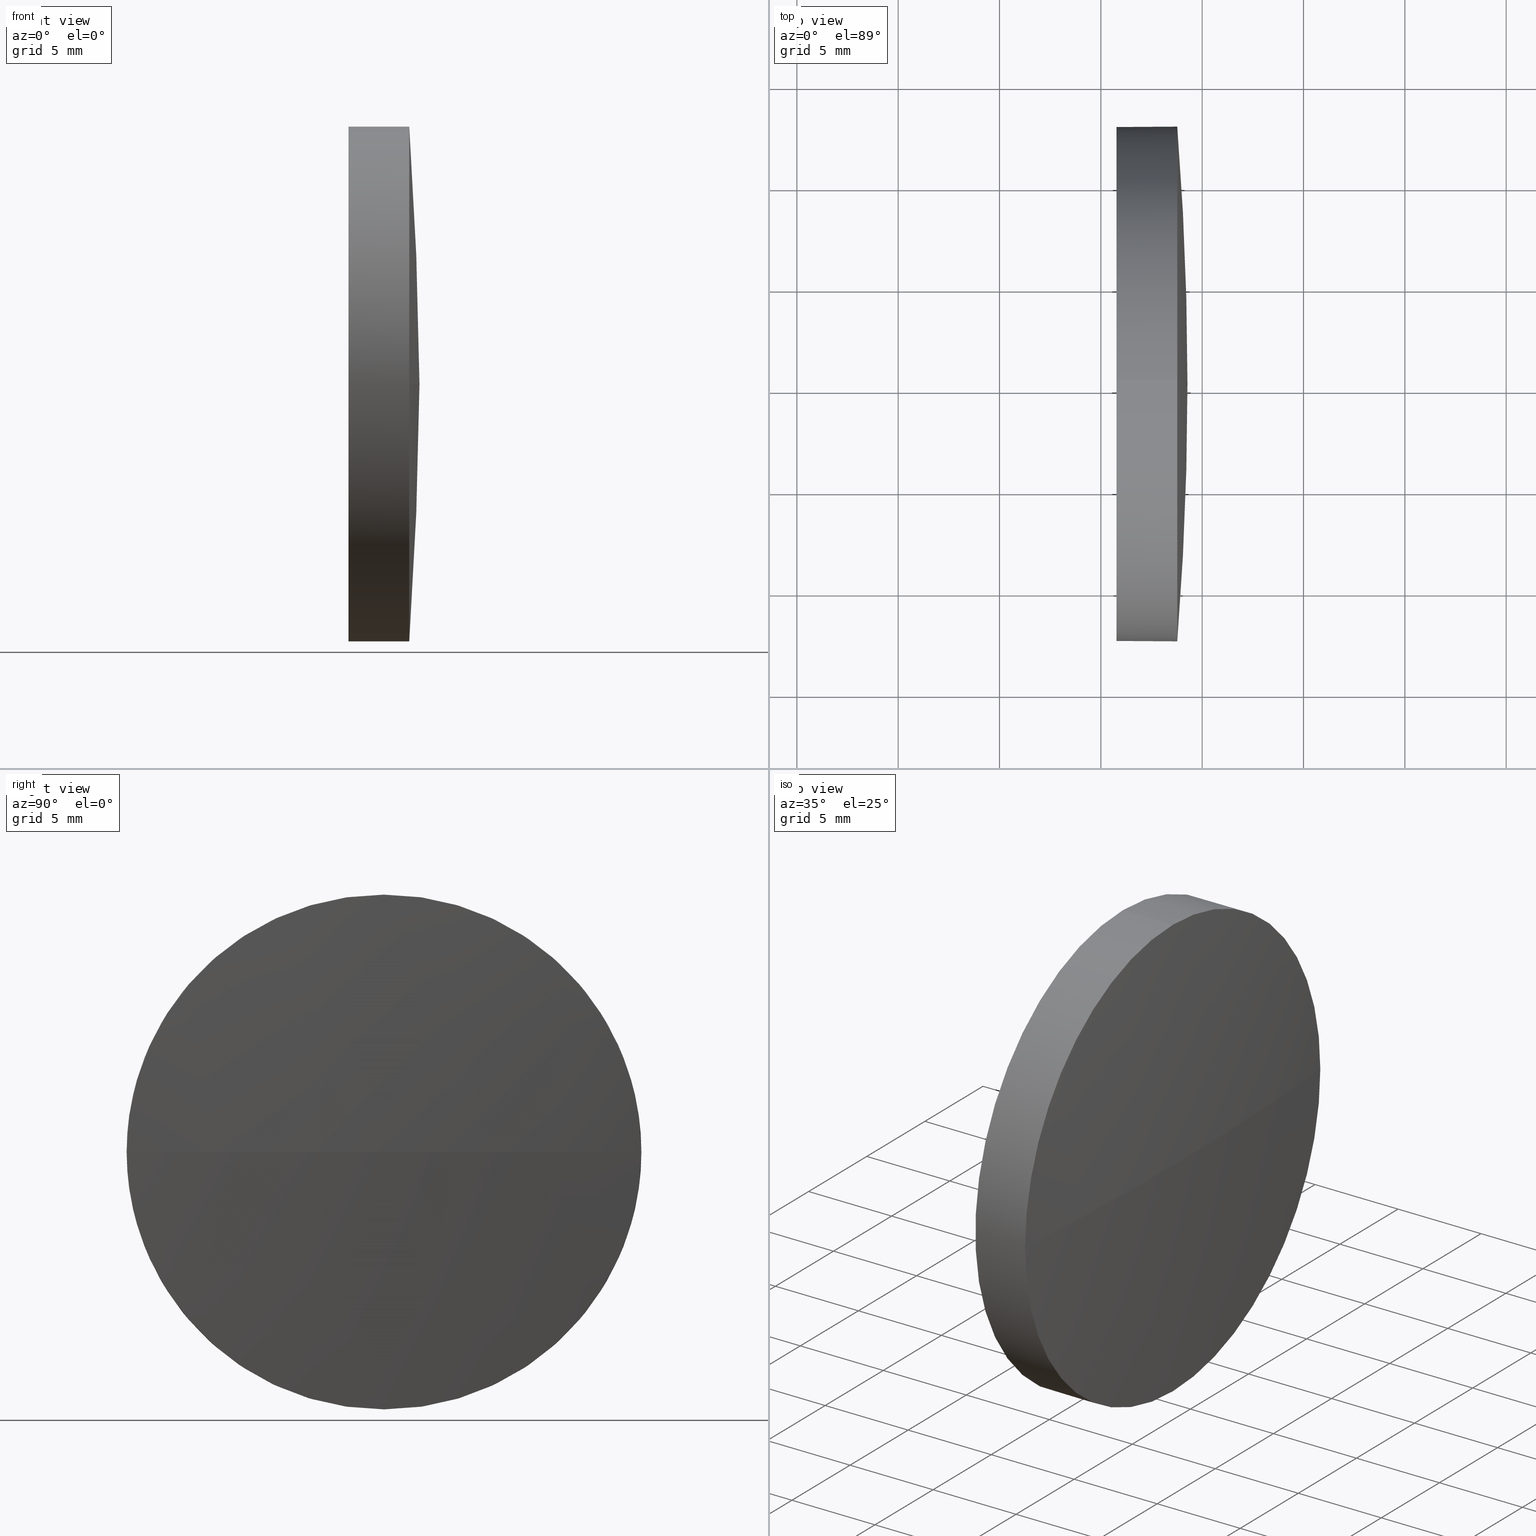
[diagram: canonical four-view strip — front | top / right | iso, engineering-drawing reading convention]
A machine part, canonical four-view strip (front | top / right | iso — engineering-drawing reading convention). The complete STEP part file that produces these views, byte-faithful:
ISO-10303-21;
HEADER;
FILE_DESCRIPTION (( 'STEP AP214' ),
    '1' );
FILE_NAME ('400020.STEP',
    '2019-08-21T06:01:08',
    ( '' ),
    ( '' ),
    'SwSTEP 2.0',
    'SolidWorks 2016',
    '' );
FILE_SCHEMA (( 'AUTOMOTIVE_DESIGN' ));
ENDSEC;

DATA;
#1 = ORIENTED_EDGE ( 'NONE', *, *, #91, .F. ) ;
#2 = EDGE_CURVE ( 'NONE', #8, #50, #66, .T. ) ;
#3 = DIRECTION ( 'NONE',  ( 0.0000000000000000000, 0.0000000000000000000, 1.000000000000000000 ) ) ;
#4 = ORIENTED_EDGE ( 'NONE', *, *, #44, .T. ) ;
#5 = DIRECTION ( 'NONE',  ( -1.000000000000000000, -0.0000000000000000000, -0.0000000000000000000 ) ) ;
#6 = CIRCLE ( 'NONE', #171, 160.4449999999999900 ) ;
#7 = CARTESIAN_POINT ( 'NONE',  ( 119.2736064308381100, 65.23355492641221100, 0.0000000000000000000 ) ) ;
#8 = VERTEX_POINT ( 'NONE', #145 ) ;
#9 = DIRECTION ( 'NONE',  ( 0.0000000000000000000, 1.224646799147353200E-016, -1.000000000000000000 ) ) ;
#10 = DIRECTION ( 'NONE',  ( 1.000000000000000000, 0.0000000000000000000, 0.0000000000000000000 ) ) ;
#11 = CIRCLE ( 'NONE', #14, 12.70000000000000300 ) ;
#12 = DIRECTION ( 'NONE',  ( -1.000000000000000000, -0.0000000000000000000, -0.0000000000000000000 ) ) ;
#13 = COLOUR_RGB ( '',1.000000000000000000, 1.000000000000000000, 1.000000000000000000 ) ;
#14 = AXIS2_PLACEMENT_3D ( 'NONE', #97, #12, #112 ) ;
#15 = ADVANCED_FACE ( 'NONE', ( #28 ), #177, .F. ) ;
#16 = ORIENTED_EDGE ( 'NONE', *, *, #2, .F. ) ;
#17 = ADVANCED_BREP_SHAPE_REPRESENTATION ( '400020', ( #185, #111 ), #93 ) ;
#18 = PRODUCT_DEFINITION_SHAPE ( 'NONE', 'NONE',  #164 ) ;
#19 = PRODUCT_DEFINITION_CONTEXT ( 'detailed design', #129, 'design' ) ;
#20 = COLOUR_RGB ( '',1.000000000000000000, 1.000000000000000000, 1.000000000000000000 ) ;
#21 = EDGE_CURVE ( 'NONE', #72, #50, #99, .T. ) ;
#22 = FACE_OUTER_BOUND ( 'NONE', #138, .T. ) ;
#23 = CARTESIAN_POINT ( 'NONE',  ( 110.1653732284884500, 65.23355492641219700, 0.0000000000000000000 ) ) ;
#24 = CARTESIAN_POINT ( 'NONE',  ( -41.17139356916187900, 65.23355492641219700, 0.0000000000000000000 ) ) ;
#25 = VECTOR ( 'NONE', #36, 1000.000000000000000 ) ;
#26 = PRODUCT ( '400020', '400020', '', ( #47 ) ) ;
#27 = DIRECTION ( 'NONE',  ( 0.0000000000000000000, 0.0000000000000000000, 1.000000000000000000 ) ) ;
#28 = FACE_OUTER_BOUND ( 'NONE', #160, .T. ) ;
#29 = DIRECTION ( 'NONE',  ( -0.0000000000000000000, 0.0000000000000000000, 1.000000000000000000 ) ) ;
#30 =( NAMED_UNIT ( * ) SI_UNIT ( $, .STERADIAN. ) SOLID_ANGLE_UNIT ( ) );
#31 = ORIENTED_EDGE ( 'NONE', *, *, #40, .F. ) ;
#32 = ADVANCED_FACE ( 'NONE', ( #64 ), #168, .T. ) ;
#33 = VERTEX_POINT ( 'NONE', #54 ) ;
#34 = CIRCLE ( 'NONE', #96, 160.4449999999999900 ) ;
#35 = DIRECTION ( 'NONE',  ( -1.000000000000000000, -0.0000000000000000000, -0.0000000000000000000 ) ) ;
#36 = DIRECTION ( 'NONE',  ( -1.000000000000000000, -0.0000000000000000000, -0.0000000000000000000 ) ) ;
#37 = ORIENTED_EDGE ( 'NONE', *, *, #115, .T. ) ;
#38 = EDGE_LOOP ( 'NONE', ( #114, #94, #46, #81 ) ) ;
#39 = CARTESIAN_POINT ( 'NONE',  ( 118.7701833425342200, 77.93355492641215700, 0.0000000000000000000 ) ) ;
#40 = EDGE_CURVE ( 'NONE', #176, #72, #116, .T. ) ;
#41 = SPHERICAL_SURFACE ( 'NONE', #65, 160.4449999999999900 ) ;
#42 = CARTESIAN_POINT ( 'NONE',  ( 118.7701833425342200, 65.23355492641219700, 0.0000000000000000000 ) ) ;
#43 =( NAMED_UNIT ( * ) SI_UNIT ( $, .STERADIAN. ) SOLID_ANGLE_UNIT ( ) );
#44 = EDGE_CURVE ( 'NONE', #178, #8, #95, .T. ) ;
#45 = ADVANCED_FACE ( 'NONE', ( #22 ), #117, .T. ) ;
#46 = ORIENTED_EDGE ( 'NONE', *, *, #58, .F. ) ;
#47 = PRODUCT_CONTEXT ( 'NONE', #154, 'mechanical' ) ;
#48 = AXIS2_PLACEMENT_3D ( 'NONE', #42, #150, #27 ) ;
#49 = CIRCLE ( 'NONE', #179, 12.70000000000000300 ) ;
#50 = VERTEX_POINT ( 'NONE', #69 ) ;
#51 = ORIENTED_EDGE ( 'NONE', *, *, #106, .T. ) ;
#52 = CARTESIAN_POINT ( 'NONE',  ( 115.7736064308381300, 65.23355492641219700, 0.0000000000000000000 ) ) ;
#53 = CARTESIAN_POINT ( 'NONE',  ( 115.7736064308381300, 65.23355492641219700, 0.0000000000000000000 ) ) ;
#54 = CARTESIAN_POINT ( 'NONE',  ( 118.7701833425342200, 52.53355492641223600, -1.555301434917133900E-015 ) ) ;
#55 = UNCERTAINTY_MEASURE_WITH_UNIT (LENGTH_MEASURE( 1.000000000000000100E-005 ), #135, 'distance_accuracy_value', 'NONE');
#56 = DIRECTION ( 'NONE',  ( 0.0000000000000000000, 0.0000000000000000000, 1.000000000000000000 ) ) ;
#57 = CARTESIAN_POINT ( 'NONE',  ( 118.7701833425342200, 65.23355492641219700, 0.0000000000000000000 ) ) ;
#58 = EDGE_CURVE ( 'NONE', #176, #178, #163, .T. ) ;
#59 = APPLICATION_PROTOCOL_DEFINITION ( 'draft international standard', 'automotive_design', 1998, #154 ) ;
#60 = FILL_AREA_STYLE_COLOUR ( '', #13 ) ;
#61 = SURFACE_SIDE_STYLE ('',( #76 ) ) ;
#62 = SURFACE_SIDE_STYLE ('',( #102 ) ) ;
#63 = VERTEX_POINT ( 'NONE', #7 ) ;
#64 = FACE_OUTER_BOUND ( 'NONE', #186, .T. ) ;
#65 = AXIS2_PLACEMENT_3D ( 'NONE', #85, #90, #127 ) ;
#66 = LINE ( 'NONE', #132, #172 ) ;
#67 = DIRECTION ( 'NONE',  ( 0.0000000000000000000, 0.0000000000000000000, -1.000000000000000000 ) ) ;
#68 = PRESENTATION_STYLE_ASSIGNMENT (( #152 ) ) ;
#69 = CARTESIAN_POINT ( 'NONE',  ( 115.7736064308381300, 65.23355492641219700, -12.70000000000000300 ) ) ;
#70 = AXIS2_PLACEMENT_3D ( 'NONE', #23, #133, #118 ) ;
#71 = ORIENTED_EDGE ( 'NONE', *, *, #58, .T. ) ;
#72 = VERTEX_POINT ( 'NONE', #134 ) ;
#73 =( NAMED_UNIT ( * ) SI_UNIT ( $, .STERADIAN. ) SOLID_ANGLE_UNIT ( ) );
#74 =( LENGTH_UNIT ( ) NAMED_UNIT ( * ) SI_UNIT ( .MILLI., .METRE. ) );
#75 = DIRECTION ( 'NONE',  ( -1.000000000000000000, -0.0000000000000000000, -0.0000000000000000000 ) ) ;
#76 = SURFACE_STYLE_FILL_AREA ( #109 ) ;
#77 = ORIENTED_EDGE ( 'NONE', *, *, #115, .F. ) ;
#78 = MECHANICAL_DESIGN_GEOMETRIC_PRESENTATION_REPRESENTATION (  '', ( #113 ), #84 ) ;
#79 = ORIENTED_EDGE ( 'NONE', *, *, #44, .F. ) ;
#80 = UNCERTAINTY_MEASURE_WITH_UNIT (LENGTH_MEASURE( 1.000000000000000100E-005 ), #86, 'distance_accuracy_value', 'NONE');
#81 = ORIENTED_EDGE ( 'NONE', *, *, #106, .F. ) ;
#82 = DIRECTION ( 'NONE',  ( 0.0000000000000000000, 1.000000000000000000, 0.0000000000000000000 ) ) ;
#83 = DIRECTION ( 'NONE',  ( 0.0000000000000000000, 0.0000000000000000000, 1.000000000000000000 ) ) ;
#84 =( GEOMETRIC_REPRESENTATION_CONTEXT ( 3 ) GLOBAL_UNCERTAINTY_ASSIGNED_CONTEXT ( ( #80 ) ) GLOBAL_UNIT_ASSIGNED_CONTEXT ( ( #86, #181, #43 ) ) REPRESENTATION_CONTEXT ( 'NONE', 'WORKASPACE' ) );
#85 = CARTESIAN_POINT ( 'NONE',  ( -41.17139356916187900, 65.23355492641219700, 0.0000000000000000000 ) ) ;
#86 =( LENGTH_UNIT ( ) NAMED_UNIT ( * ) SI_UNIT ( .MILLI., .METRE. ) );
#87 = FILL_AREA_STYLE ('',( #136 ) ) ;
#88 = FACE_OUTER_BOUND ( 'NONE', #104, .T. ) ;
#89 = CARTESIAN_POINT ( 'NONE',  ( -41.17139356916187900, 65.23355492641219700, 0.0000000000000000000 ) ) ;
#90 = DIRECTION ( 'NONE',  ( -0.0000000000000000000, 0.0000000000000000000, -1.000000000000000000 ) ) ;
#91 = EDGE_CURVE ( 'NONE', #63, #178, #6, .T. ) ;
#92 = ORIENTED_EDGE ( 'NONE', *, *, #21, .F. ) ;
#93 =( GEOMETRIC_REPRESENTATION_CONTEXT ( 3 ) GLOBAL_UNCERTAINTY_ASSIGNED_CONTEXT ( ( #55 ) ) GLOBAL_UNIT_ASSIGNED_CONTEXT ( ( #135, #98, #73 ) ) REPRESENTATION_CONTEXT ( 'NONE', 'WORKASPACE' ) );
#94 = ORIENTED_EDGE ( 'NONE', *, *, #91, .T. ) ;
#95 = CIRCLE ( 'NONE', #162, 12.70000000000000300 ) ;
#96 = AXIS2_PLACEMENT_3D ( 'NONE', #89, #9, #184 ) ;
#97 = CARTESIAN_POINT ( 'NONE',  ( 115.7736064308381300, 65.23355492641219700, 0.0000000000000000000 ) ) ;
#98 =( NAMED_UNIT ( * ) PLANE_ANGLE_UNIT ( ) SI_UNIT ( $, .RADIAN. ) );
#99 = CIRCLE ( 'NONE', #125, 12.70000000000000300 ) ;
#100 = DIRECTION ( 'NONE',  ( -1.000000000000000000, -0.0000000000000000000, -0.0000000000000000000 ) ) ;
#101 = CARTESIAN_POINT ( 'NONE',  ( 118.7701833425342200, 65.23355492641219700, 0.0000000000000000000 ) ) ;
#102 = SURFACE_STYLE_FILL_AREA ( #87 ) ;
#103 = AXIS2_PLACEMENT_3D ( 'NONE', #124, #100, #169 ) ;
#104 = EDGE_LOOP ( 'NONE', ( #4, #142, #92, #31, #71 ) ) ;
#105 = PRODUCT_DEFINITION_FORMATION_WITH_SPECIFIED_SOURCE ( '�κ�', '', #26, .NOT_KNOWN. ) ;
#106 = EDGE_CURVE ( 'NONE', #33, #176, #49, .T. ) ;
#107 = DIRECTION ( 'NONE',  ( -0.0000000000000000000, 0.0000000000000000000, -1.000000000000000000 ) ) ;
#108 = ORIENTED_EDGE ( 'NONE', *, *, #21, .T. ) ;
#109 = FILL_AREA_STYLE ('',( #60 ) ) ;
#110 = DIRECTION ( 'NONE',  ( -1.000000000000000000, -0.0000000000000000000, -0.0000000000000000000 ) ) ;
#111 = AXIS2_PLACEMENT_3D ( 'NONE', #139, #3, #128 ) ;
#112 = DIRECTION ( 'NONE',  ( 0.0000000000000000000, 0.0000000000000000000, 1.000000000000000000 ) ) ;
#113 = STYLED_ITEM ( 'NONE', ( #119 ), #185 ) ;
#114 = ORIENTED_EDGE ( 'NONE', *, *, #183, .F. ) ;
#115 = EDGE_CURVE ( 'NONE', #50, #72, #11, .T. ) ;
#116 = LINE ( 'NONE', #165, #25 ) ;
#117 = CYLINDRICAL_SURFACE ( 'NONE', #70, 12.70000000000000300 ) ;
#118 = DIRECTION ( 'NONE',  ( 0.0000000000000000000, 0.0000000000000000000, 1.000000000000000000 ) ) ;
#119 = PRESENTATION_STYLE_ASSIGNMENT (( #167 ) ) ;
#120 = DIRECTION ( 'NONE',  ( -1.000000000000000000, -0.0000000000000000000, -0.0000000000000000000 ) ) ;
#121 = PRESENTATION_LAYER_ASSIGNMENT (  '', '', ( #113 ) ) ;
#122 = PRODUCT_RELATED_PRODUCT_CATEGORY ( 'part', '', ( #26 ) ) ;
#123 = DIRECTION ( 'NONE',  ( 0.0000000000000000000, 0.0000000000000000000, 1.000000000000000000 ) ) ;
#124 = CARTESIAN_POINT ( 'NONE',  ( 110.1653732284884500, 65.23355492641219700, 0.0000000000000000000 ) ) ;
#125 = AXIS2_PLACEMENT_3D ( 'NONE', #52, #35, #83 ) ;
#126 = CARTESIAN_POINT ( 'NONE',  ( -41.17139356916187900, 65.23355492641219700, 0.0000000000000000000 ) ) ;
#127 = DIRECTION ( 'NONE',  ( 0.0000000000000000000, 1.000000000000000000, 0.0000000000000000000 ) ) ;
#128 = DIRECTION ( 'NONE',  ( 1.000000000000000000, 0.0000000000000000000, 0.0000000000000000000 ) ) ;
#129 = APPLICATION_CONTEXT ( 'automotive_design' ) ;
#130 = PRESENTATION_LAYER_ASSIGNMENT (  '', '', ( #141 ) ) ;
#131 = AXIS2_PLACEMENT_3D ( 'NONE', #53, #146, #67 ) ;
#132 = CARTESIAN_POINT ( 'NONE',  ( 110.1653732284884500, 65.23355492641219700, -12.70000000000000300 ) ) ;
#133 = DIRECTION ( 'NONE',  ( -1.000000000000000000, -0.0000000000000000000, -0.0000000000000000000 ) ) ;
#134 = CARTESIAN_POINT ( 'NONE',  ( 115.7736064308381300, 65.23355492641219700, 12.70000000000000300 ) ) ;
#135 =( LENGTH_UNIT ( ) NAMED_UNIT ( * ) SI_UNIT ( .MILLI., .METRE. ) );
#136 = FILL_AREA_STYLE_COLOUR ( '', #20 ) ;
#137 = DIRECTION ( 'NONE',  ( 0.0000000000000000000, 0.0000000000000000000, 1.000000000000000000 ) ) ;
#138 = EDGE_LOOP ( 'NONE', ( #16, #147, #51, #157, #77 ) ) ;
#139 = CARTESIAN_POINT ( 'NONE',  ( 0.0000000000000000000, 0.0000000000000000000, 0.0000000000000000000 ) ) ;
#140 = ADVANCED_FACE ( 'NONE', ( #88 ), #173, .T. ) ;
#141 = STYLED_ITEM ( 'NONE', ( #68 ), #17 ) ;
#142 = ORIENTED_EDGE ( 'NONE', *, *, #2, .T. ) ;
#143 =( GEOMETRIC_REPRESENTATION_CONTEXT ( 3 ) GLOBAL_UNCERTAINTY_ASSIGNED_CONTEXT ( ( #175 ) ) GLOBAL_UNIT_ASSIGNED_CONTEXT ( ( #74, #148, #30 ) ) REPRESENTATION_CONTEXT ( 'NONE', 'WORKASPACE' ) );
#144 = CIRCLE ( 'NONE', #48, 12.70000000000000300 ) ;
#145 = CARTESIAN_POINT ( 'NONE',  ( 118.7701833425342200, 65.23355492641219700, -12.70000000000000300 ) ) ;
#146 = DIRECTION ( 'NONE',  ( 1.000000000000000000, 0.0000000000000000000, 0.0000000000000000000 ) ) ;
#147 = ORIENTED_EDGE ( 'NONE', *, *, #166, .T. ) ;
#148 =( NAMED_UNIT ( * ) PLANE_ANGLE_UNIT ( ) SI_UNIT ( $, .RADIAN. ) );
#149 = ORIENTED_EDGE ( 'NONE', *, *, #166, .F. ) ;
#150 = DIRECTION ( 'NONE',  ( -1.000000000000000000, -0.0000000000000000000, -0.0000000000000000000 ) ) ;
#151 = AXIS2_PLACEMENT_3D ( 'NONE', #24, #107, #82 ) ;
#152 = SURFACE_STYLE_USAGE ( .BOTH. , #62 ) ;
#153 = FACE_OUTER_BOUND ( 'NONE', #38, .T. ) ;
#154 = APPLICATION_CONTEXT ( 'automotive_design' ) ;
#155 = APPLICATION_PROTOCOL_DEFINITION ( 'draft international standard', 'automotive_design', 1998, #129 ) ;
#156 = CLOSED_SHELL ( 'NONE', ( #140, #32, #158, #45, #15 ) ) ;
#157 = ORIENTED_EDGE ( 'NONE', *, *, #40, .T. ) ;
#158 = ADVANCED_FACE ( 'NONE', ( #153 ), #41, .T. ) ;
#159 = AXIS2_PLACEMENT_3D ( 'NONE', #182, #110, #137 ) ;
#160 = EDGE_LOOP ( 'NONE', ( #108, #37 ) ) ;
#161 = SHAPE_DEFINITION_REPRESENTATION ( #18, #17 ) ;
#162 = AXIS2_PLACEMENT_3D ( 'NONE', #57, #120, #56 ) ;
#163 = CIRCLE ( 'NONE', #159, 12.70000000000000300 ) ;
#164 = PRODUCT_DEFINITION ( 'δ֪', '', #105, #19 ) ;
#165 = CARTESIAN_POINT ( 'NONE',  ( 110.1653732284884500, 65.23355492641219700, 12.70000000000000300 ) ) ;
#166 = EDGE_CURVE ( 'NONE', #8, #33, #144, .T. ) ;
#167 = SURFACE_STYLE_USAGE ( .BOTH. , #61 ) ;
#168 = SPHERICAL_SURFACE ( 'NONE', #151, 160.4449999999999900 ) ;
#169 = DIRECTION ( 'NONE',  ( 0.0000000000000000000, 0.0000000000000000000, 1.000000000000000000 ) ) ;
#170 = MECHANICAL_DESIGN_GEOMETRIC_PRESENTATION_REPRESENTATION (  '', ( #141 ), #143 ) ;
#171 = AXIS2_PLACEMENT_3D ( 'NONE', #126, #29, #10 ) ;
#172 = VECTOR ( 'NONE', #5, 1000.000000000000000 ) ;
#173 = CYLINDRICAL_SURFACE ( 'NONE', #103, 12.70000000000000300 ) ;
#174 = ORIENTED_EDGE ( 'NONE', *, *, #183, .T. ) ;
#175 = UNCERTAINTY_MEASURE_WITH_UNIT (LENGTH_MEASURE( 1.000000000000000100E-005 ), #74, 'distance_accuracy_value', 'NONE');
#176 = VERTEX_POINT ( 'NONE', #180 ) ;
#177 = PLANE ( 'NONE',  #131 ) ;
#178 = VERTEX_POINT ( 'NONE', #39 ) ;
#179 = AXIS2_PLACEMENT_3D ( 'NONE', #101, #75, #123 ) ;
#180 = CARTESIAN_POINT ( 'NONE',  ( 118.7701833425342200, 65.23355492641219700, 12.70000000000000300 ) ) ;
#181 =( NAMED_UNIT ( * ) PLANE_ANGLE_UNIT ( ) SI_UNIT ( $, .RADIAN. ) );
#182 = CARTESIAN_POINT ( 'NONE',  ( 118.7701833425342200, 65.23355492641219700, 0.0000000000000000000 ) ) ;
#183 = EDGE_CURVE ( 'NONE', #63, #33, #34, .T. ) ;
#184 = DIRECTION ( 'NONE',  ( 0.0000000000000000000, 1.000000000000000000, 1.224646799147353500E-016 ) ) ;
#185 = MANIFOLD_SOLID_BREP ( '��ת1', #156 ) ;
#186 = EDGE_LOOP ( 'NONE', ( #1, #174, #149, #79 ) ) ;
ENDSEC;
END-ISO-10303-21;
